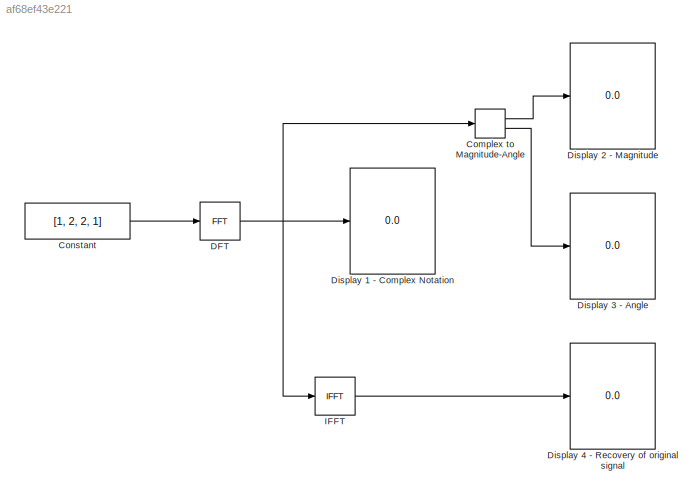
MODEL slx_af68ef43e221
KIND model
CONFIG AbsTol = auto
CONFIG EnableMultiTasking = off
CONFIG FixedStep = auto
CONFIG MaxStep = auto
CONFIG MinStep = auto
CONFIG RelTol = 1e-3
CONFIG SampleTimeConstraint = Unconstrained
CONFIG Solver = VariableStepAuto
CONFIG SolverName = VariableStepAuto
CONFIG StartTime = 0.0
CONFIG StopTime = 10.0
BLOCK [ComplexToMagnitudeAngle] Complex to Magnitude-Angle
  Ports = [1, 2]
BLOCK [Constant] Constant
  Value = [1, 2, 2, 1]
BLOCK [Reference] DFT  REF=dspxfrm3/FFT
  Ports = [1, 1]
  SourceBlock = dspxfrm3/FFT
  SourceType = FFT
BLOCK [Display] Display 1 - Complex Notation
  Decimation = 1
  Ports = [1]
BLOCK [Display] Display 2 - Magnitude
  Decimation = 1
  Ports = [1]
BLOCK [Display] Display 3 - Angle
  Decimation = 1
  Ports = [1]
BLOCK [Display] Display 4 - Recovery of original signal
  Decimation = 1
  Ports = [1]
BLOCK [Reference] IFFT  REF=dspxfrm3/IFFT
  Ports = [1, 1]
  SourceBlock = dspxfrm3/IFFT
  SourceType = IFFT
LINE Complex to Magnitude-Angle:1 -> Display 2 - Magnitude:1
LINE Complex to Magnitude-Angle:2 -> Display 3 - Angle:1
LINE Constant:1 -> DFT:1
NET DFT:1 -> Complex to Magnitude-Angle:1, Display 1 - Complex Notation:1, IFFT:1
LINE IFFT:1 -> Display 4 - Recovery of original signal:1
note: NET lines group one-source signal fan-out (src -> all destinations, sorted); 1:1 wires keep LINE
